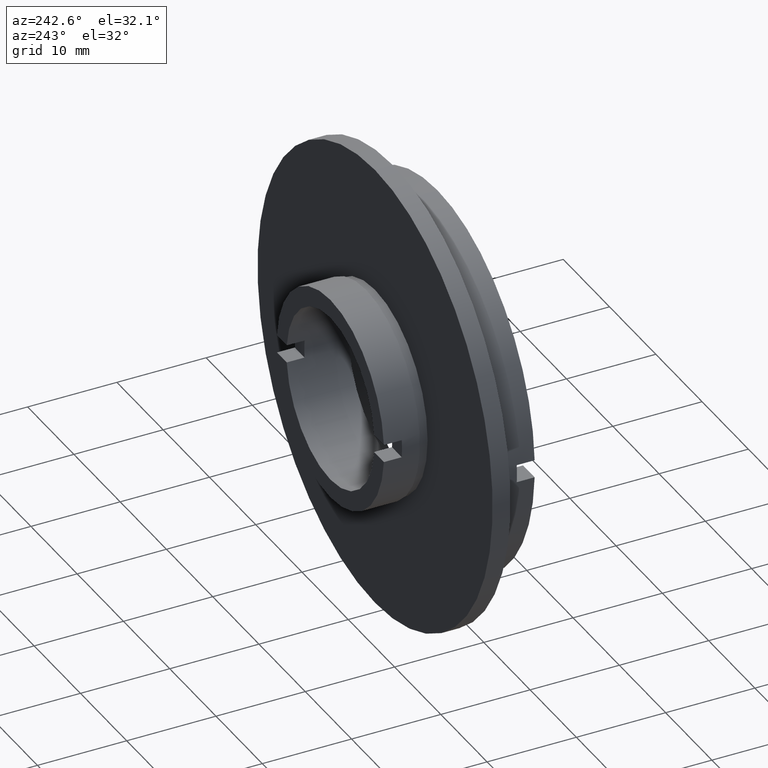
[diagram: clean part render]
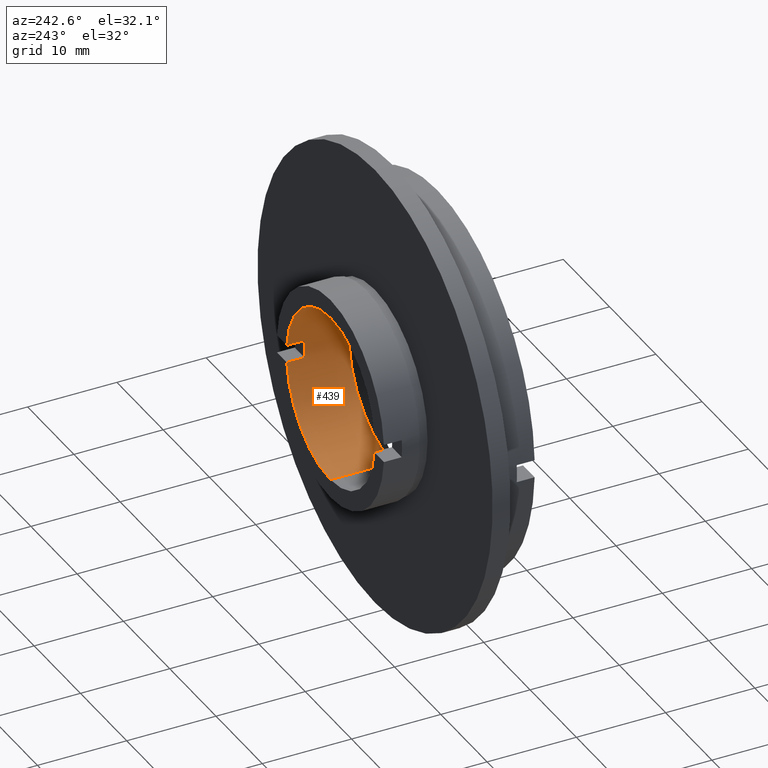
[diagram: same view with one face highlighted and labeled with its STEP entity id]
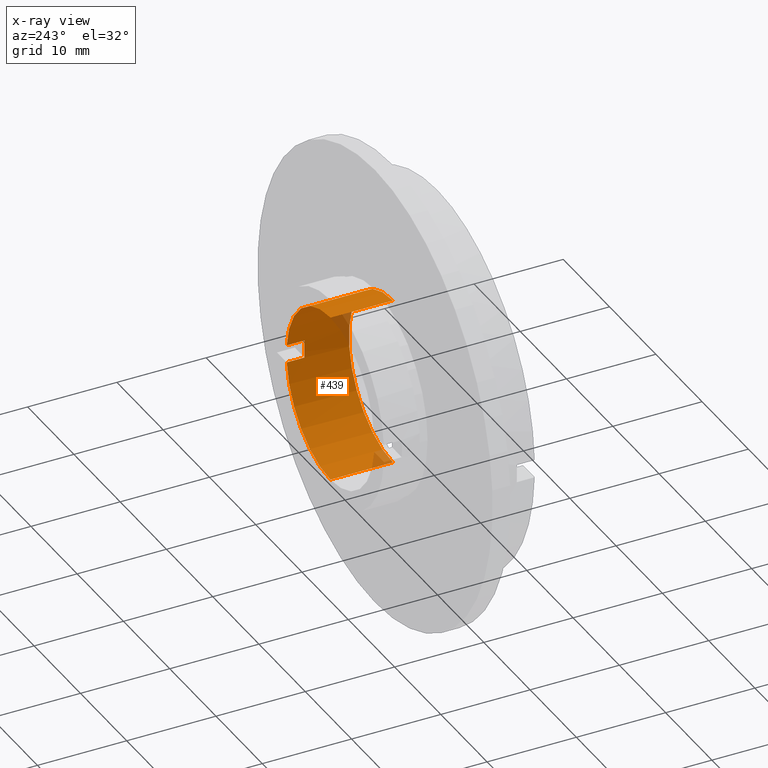
[diagram: x-ray of the same camera — body ghosted, the highlighted face saturated]
A machine part, auxiliary view. The second image highlights one B-rep face of the part: STEP entity #439.
The next image is the same camera in x-ray: the body ghosted, the highlighted face saturated — about 5% of this face is hidden behind the body in this view.
In plain terms, the highlighted cylindrical surface (partial cylindrical patch) has radius 9.5 mm, axis along (-0, 1, -0).
Its self-contained STEP definition (entity closure, byte-faithful):
#2 = VERTEX_POINT ( 'NONE', #338 ) ;
#6 = DIRECTION ( 'NONE',  ( -0.0000000000000000000, 1.000000000000000000, -0.0000000000000000000 ) ) ;
#20 = EDGE_CURVE ( 'NONE', #1149, #2, #548, .T. ) ;
#47 = EDGE_CURVE ( 'NONE', #433, #2, #223, .T. ) ;
#51 = VECTOR ( 'NONE', #803, 1000.000000000000000 ) ;
#82 = CIRCLE ( 'NONE', #1166, 9.499999999999998200 ) ;
#92 = ORIENTED_EDGE ( 'NONE', *, *, #638, .T. ) ;
#93 = CARTESIAN_POINT ( 'NONE',  ( 1.163414459189985300E-015, 22.67749945107591400, -9.499999999999998200 ) ) ;
#96 = DIRECTION ( 'NONE',  ( 0.0000000000000000000, 0.0000000000000000000, 1.000000000000000000 ) ) ;
#115 = AXIS2_PLACEMENT_3D ( 'NONE', #206, #867, #497 ) ;
#121 = CARTESIAN_POINT ( 'NONE',  ( 9.447221813845589000, 22.67749945107591400, -1.000000000000000000 ) ) ;
#141 = CYLINDRICAL_SURFACE ( 'NONE', #903, 9.499999999999998200 ) ;
#144 = DIRECTION ( 'NONE',  ( -0.0000000000000000000, 1.000000000000000000, -0.0000000000000000000 ) ) ;
#170 = EDGE_CURVE ( 'NONE', #1078, #1149, #82, .T. ) ;
#185 = LINE ( 'NONE', #121, #51 ) ;
#206 = CARTESIAN_POINT ( 'NONE',  ( 0.0000000000000000000, 5.000000000000000900, 0.0000000000000000000 ) ) ;
#211 = EDGE_CURVE ( 'NONE', #1017, #642, #485, .T. ) ;
#223 = CIRCLE ( 'NONE', #395, 9.499999999999998200 ) ;
#249 = ORIENTED_EDGE ( 'NONE', *, *, #1337, .T. ) ;
#255 = AXIS2_PLACEMENT_3D ( 'NONE', #550, #1300, #520 ) ;
#328 = ORIENTED_EDGE ( 'NONE', *, *, #47, .T. ) ;
#338 = CARTESIAN_POINT ( 'NONE',  ( 9.447221813845590800, 12.00000000000000000, 1.000000000000001600 ) ) ;
#339 = ORIENTED_EDGE ( 'NONE', *, *, #170, .F. ) ;
#353 = LINE ( 'NONE', #93, #1024 ) ;
#368 = CARTESIAN_POINT ( 'NONE',  ( 0.0000000000000000000, 12.00000000000000000, 0.0000000000000000000 ) ) ;
#385 = CARTESIAN_POINT ( 'NONE',  ( 1.163414459189985300E-015, 5.000000000000000900, -9.499999999999998200 ) ) ;
#395 = AXIS2_PLACEMENT_3D ( 'NONE', #368, #602, #925 ) ;
#403 = FACE_OUTER_BOUND ( 'NONE', #1330, .T. ) ;
#433 = VERTEX_POINT ( 'NONE', #869 ) ;
#439 = ADVANCED_FACE ( 'NONE', ( #403 ), #141, .F. ) ;
#476 = ORIENTED_EDGE ( 'NONE', *, *, #20, .F. ) ;
#485 = CIRCLE ( 'NONE', #115, 9.499999999999998200 ) ;
#497 = DIRECTION ( 'NONE',  ( 0.0000000000000000000, 0.0000000000000000000, 1.000000000000000000 ) ) ;
#520 = DIRECTION ( 'NONE',  ( 0.0000000000000000000, 0.0000000000000000000, 1.000000000000000000 ) ) ;
#535 = DIRECTION ( 'NONE',  ( -0.0000000000000000000, 1.000000000000000000, -0.0000000000000000000 ) ) ;
#548 = LINE ( 'NONE', #1087, #937 ) ;
#550 = CARTESIAN_POINT ( 'NONE',  ( 0.0000000000000000000, 12.00000000000000000, 0.0000000000000000000 ) ) ;
#602 = DIRECTION ( 'NONE',  ( -0.0000000000000000000, 1.000000000000000000, -0.0000000000000000000 ) ) ;
#617 = VECTOR ( 'NONE', #812, 1000.000000000000000 ) ;
#638 = EDGE_CURVE ( 'NONE', #1017, #433, #1056, .T. ) ;
#642 = VERTEX_POINT ( 'NONE', #385 ) ;
#644 = CIRCLE ( 'NONE', #255, 9.499999999999998200 ) ;
#671 = EDGE_CURVE ( 'NONE', #889, #1078, #185, .T. ) ;
#683 = CARTESIAN_POINT ( 'NONE',  ( 9.447221813845590800, 10.00000000000000000, 1.000000000000001300 ) ) ;
#776 = CARTESIAN_POINT ( 'NONE',  ( 0.0000000000000000000, 10.00000000000000000, 0.0000000000000000000 ) ) ;
#803 = DIRECTION ( 'NONE',  ( 0.0000000000000000000, -1.000000000000000000, 0.0000000000000000000 ) ) ;
#812 = DIRECTION ( 'NONE',  ( -0.0000000000000000000, 1.000000000000000000, -0.0000000000000000000 ) ) ;
#867 = DIRECTION ( 'NONE',  ( -0.0000000000000000000, 1.000000000000000000, -0.0000000000000000000 ) ) ;
#869 = CARTESIAN_POINT ( 'NONE',  ( 0.0000000000000000000, 12.00000000000000000, 9.499999999999998200 ) ) ;
#874 = DIRECTION ( 'NONE',  ( 0.0000000000000000000, 0.0000000000000000000, -1.000000000000000000 ) ) ;
#885 = CARTESIAN_POINT ( 'NONE',  ( 1.163414459189985300E-015, 12.00000000000000000, -9.499999999999998200 ) ) ;
#889 = VERTEX_POINT ( 'NONE', #890 ) ;
#890 = CARTESIAN_POINT ( 'NONE',  ( 9.447221813845590800, 12.00000000000000000, -0.9999999999999978900 ) ) ;
#903 = AXIS2_PLACEMENT_3D ( 'NONE', #1005, #144, #96 ) ;
#911 = EDGE_CURVE ( 'NONE', #642, #1199, #353, .T. ) ;
#925 = DIRECTION ( 'NONE',  ( 0.0000000000000000000, 0.0000000000000000000, 1.000000000000000000 ) ) ;
#937 = VECTOR ( 'NONE', #535, 1000.000000000000000 ) ;
#1005 = CARTESIAN_POINT ( 'NONE',  ( 0.0000000000000000000, 22.67749945107591400, 0.0000000000000000000 ) ) ;
#1017 = VERTEX_POINT ( 'NONE', #1114 ) ;
#1024 = VECTOR ( 'NONE', #6, 1000.000000000000000 ) ;
#1050 = DIRECTION ( 'NONE',  ( -0.0000000000000000000, -1.000000000000000000, -0.0000000000000000000 ) ) ;
#1056 = LINE ( 'NONE', #1234, #617 ) ;
#1073 = CARTESIAN_POINT ( 'NONE',  ( 9.447221813845590800, 10.00000000000000000, -0.9999999999999974500 ) ) ;
#1078 = VERTEX_POINT ( 'NONE', #1073 ) ;
#1087 = CARTESIAN_POINT ( 'NONE',  ( 9.447221813845589000, 22.67749945107591400, 1.000000000000002900 ) ) ;
#1114 = CARTESIAN_POINT ( 'NONE',  ( 0.0000000000000000000, 5.000000000000000900, 9.499999999999998200 ) ) ;
#1121 = ORIENTED_EDGE ( 'NONE', *, *, #911, .F. ) ;
#1146 = ORIENTED_EDGE ( 'NONE', *, *, #211, .F. ) ;
#1149 = VERTEX_POINT ( 'NONE', #683 ) ;
#1166 = AXIS2_PLACEMENT_3D ( 'NONE', #776, #1050, #874 ) ;
#1199 = VERTEX_POINT ( 'NONE', #885 ) ;
#1230 = ORIENTED_EDGE ( 'NONE', *, *, #671, .F. ) ;
#1234 = CARTESIAN_POINT ( 'NONE',  ( 0.0000000000000000000, 22.67749945107591400, 9.499999999999998200 ) ) ;
#1300 = DIRECTION ( 'NONE',  ( -0.0000000000000000000, 1.000000000000000000, -0.0000000000000000000 ) ) ;
#1330 = EDGE_LOOP ( 'NONE', ( #1121, #1146, #92, #328, #476, #339, #1230, #249 ) ) ;
#1337 = EDGE_CURVE ( 'NONE', #889, #1199, #644, .T. ) ;